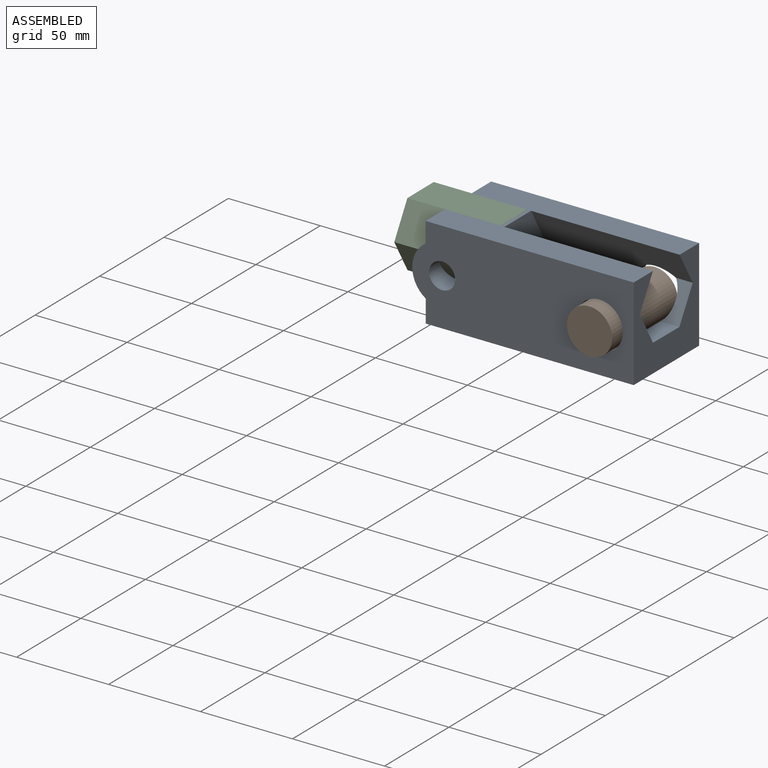
[diagram: assembled view]
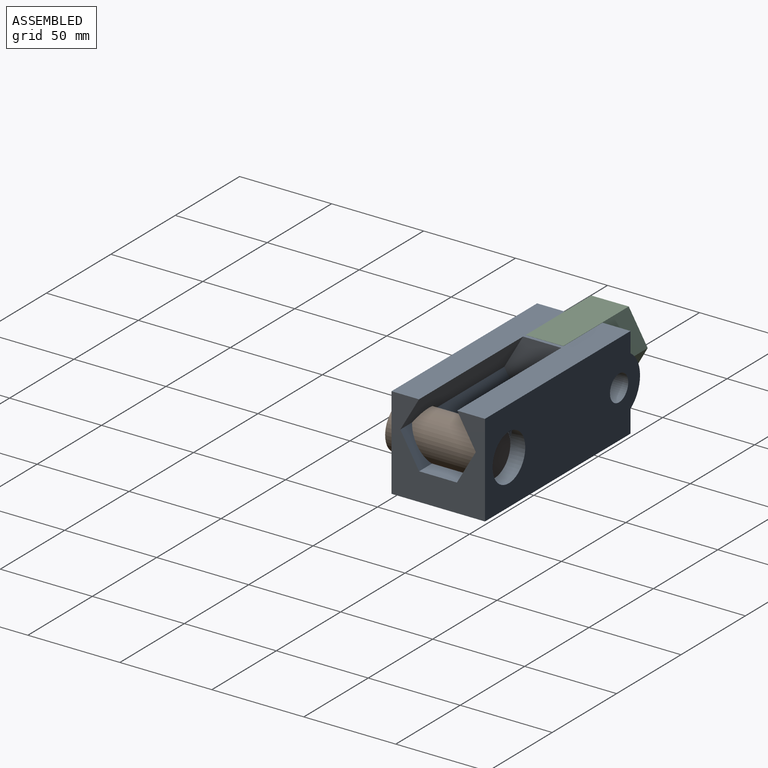
[diagram: assembled view, second angle]
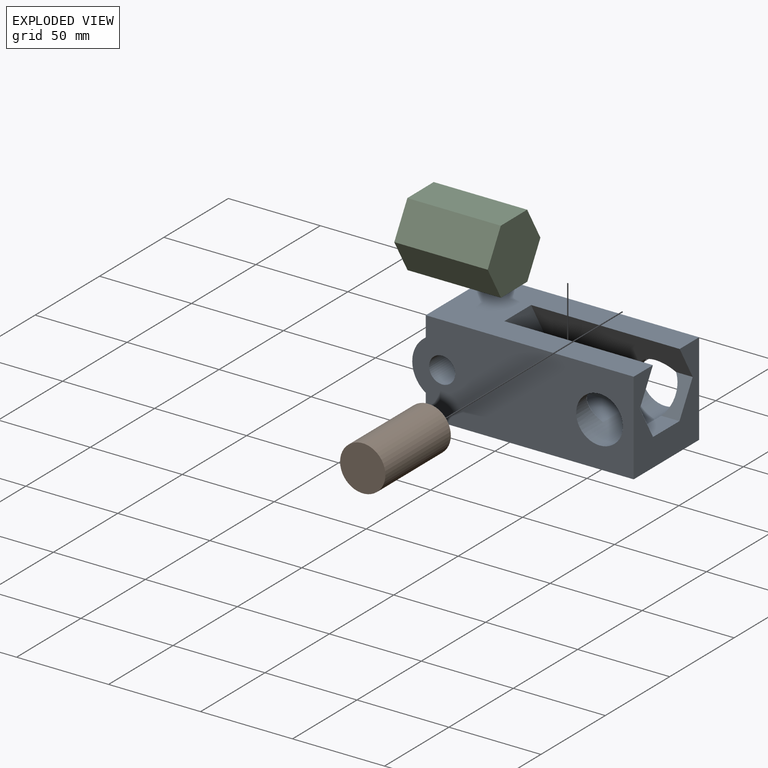
[diagram: exploded view]
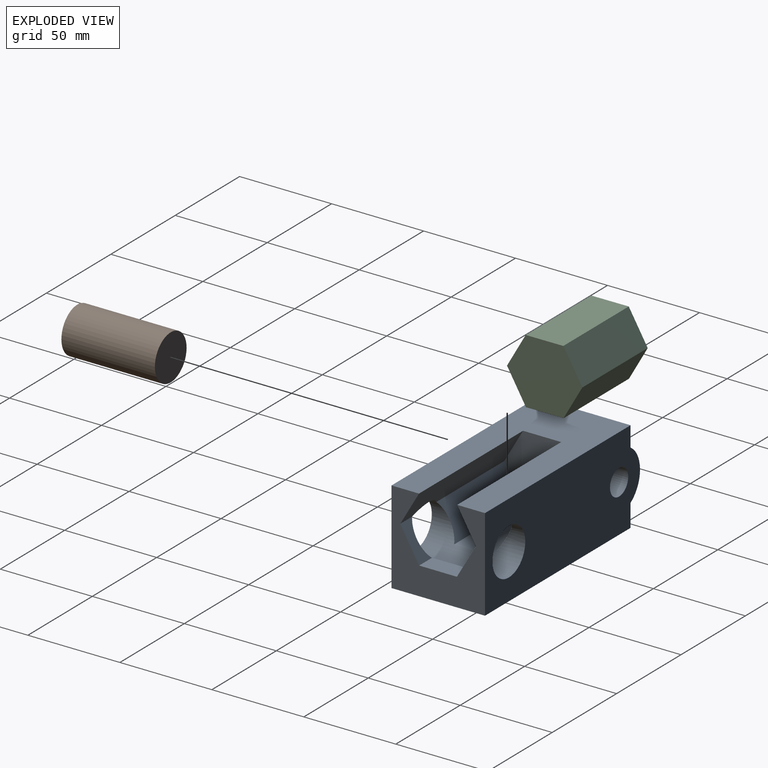
[diagram: exploded view, second angle]
ASSEMBLY  parts=3 mates=2
PART A: 19 faces, bbox 120.4x50.8x50.4 mm
  f0: plane 50.8x50.42mm, normal (1,0,0), area 1470.2mm2, adj f1,f5,f8,f9,f13,f14,f15,f16
  f1: plane 113.03x50.8mm, normal (0,0,1), area 4064.5mm2, adj f0,f7,f8,f9,f13,f17,f18
  f2: cylinder r=12.7mm len=50.8mm, axis (0,1,0), area 2034.2mm2, adj f8,f9,f10,f11,f12,f13,f14,f15
  f3: cylinder r=16.23mm len=50.8mm, axis (0,1,0), area 1635.8mm2, adj f4,f7,f8,f9
  f4: plane 50.8x12.26mm, normal (-1,0,0), area 622.7mm2, adj f3,f5,f8,f9
  f5: plane 113.03x50.8mm, normal (0,0,-1), area 5741.7mm2, adj f0,f4,f8,f9
  f6: cylinder r=7.07mm len=50.8mm, axis (0,1,0), area 2255.3mm2, adj f8,f9
  f7: plane 50.8x10.98mm, normal (-1,0,0), area 557.9mm2, adj f1,f3,f8,f9
  f8: plane 120.38x50.42mm, normal (0,-1,0), area 5175.3mm2, adj f0,f1,f2,f3,f4,f5,f6,f7
  f9: plane 120.38x50.42mm, normal (0,1,0), area 5175.3mm2, adj f0,f1,f2,f3,f4,f5,f6,f7
  f10: plane 53.57x17.8mm, normal (0,0.87,0.5), area 1039.9mm2, adj f2,f11,f13,f18
  f11: plane 53.61x20.53mm, normal (0,0,1), area 1100.3mm2, adj f2,f10,f12,f18
  f12: plane 53.61x17.76mm, normal (0,-0.87,0.5), area 1039.8mm2, adj f2,f11,f17,f18
  f13: plane 80.77x17.54mm, normal (0,0.87,-0.5), area 1573.9mm2, adj f0,f1,f2,f10,f14,f18
  f14: plane 17.8x10.23mm, normal (0,0.87,0.5), area 143.9mm2, adj f0,f2,f13,f15
  f15: plane 20.53x9.97mm, normal (0,0,1), area 204.3mm2, adj f0,f2,f14,f16
  f16: plane 17.76x10.3mm, normal (0,-0.87,0.5), area 143.8mm2, adj f0,f2,f15,f17
  f17: plane 80.77x17.61mm, normal (0,-0.87,-0.5), area 1575.9mm2, adj f0,f1,f2,f12,f16,f18
  f18: plane 41.06x35.38mm, normal (1,0,0), area 1090.9mm2, adj f1,f10,f11,f12,f13,f17
PART B: 3 faces, bbox 24.6x24.6x50.8 mm
  f0: cylinder r=12.32mm len=50.8mm, axis (0,0,-1), area 3932.1mm2, adj f1,f2
  f1: plane 24.64x24.64mm, normal (0,0,1), area 476.8mm2, adj f0
  f2: plane 24.64x24.64mm, normal (0,0,-1), area 476.8mm2, adj f0
PART C: 8 faces, bbox 40.9x35.5x50.8 mm
  f0: plane 50.8x17.76mm, normal (-0.87,-0.5,0), area 1039.2mm2, adj f1,f5,f6,f7
  f1: plane 50.8x20.46mm, normal (0,-1,0), area 1039.2mm2, adj f0,f2,f6,f7
  f2: plane 50.8x17.68mm, normal (0.86,-0.5,0), area 1039.2mm2, adj f1,f3,f6,f7
  f3: plane 50.8x17.76mm, normal (0.87,0.5,0), area 1039.2mm2, adj f2,f4,f6,f7
  f4: plane 50.8x20.46mm, normal (0,1,0), area 1039.2mm2, adj f3,f5,f6,f7
  f5: plane 50.8x17.68mm, normal (-0.86,0.5,0), area 1039.2mm2, adj f0,f4,f6,f7
  f6: plane 40.91x35.51mm, normal (0,0,1), area 1087.3mm2, adj f0,f1,f2,f3,f4,f5
  f7: plane 40.91x35.51mm, normal (0,0,-1), area 1087.3mm2, adj f0,f1,f2,f3,f4,f5
PLACE A t=(11.8,57.82,88.58)mm
PLACE B rot(axis=(1,0,0),90deg) t=(51.93,49.98,87.12)mm
PLACE C rot(axis=(-0.58,-0.58,0.58),120deg) t=(-12.25,34.43,136.37)mm
MATE slider B.f0 <-> A.f2  axis (0,1,0) through (51.93,49.98,87.12)mm
MATE slider C.f6 <-> A.f18  axis (-1,0,0) through (-63.05,32.32,95.5)mm
